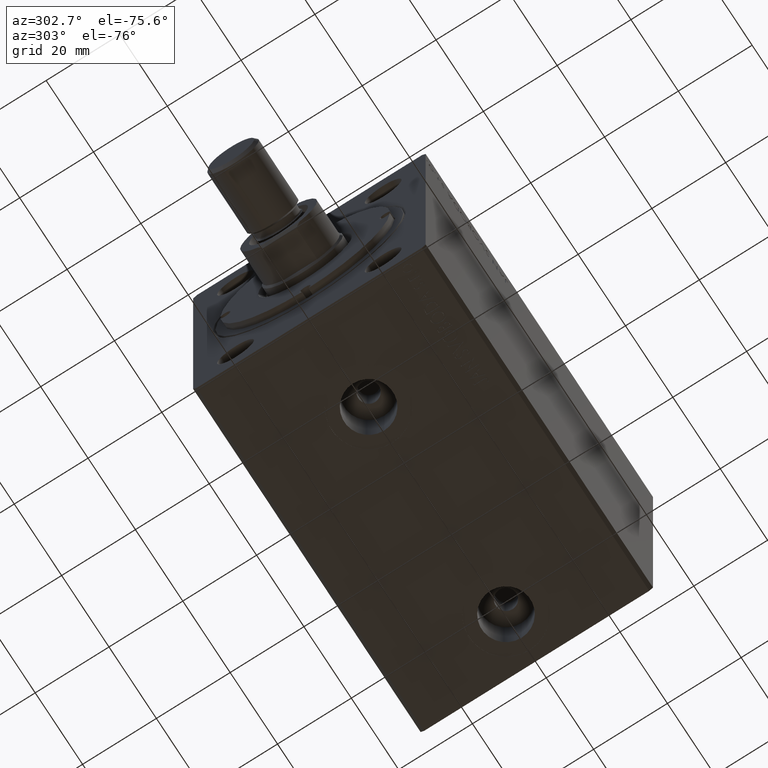
[diagram: clean part render]
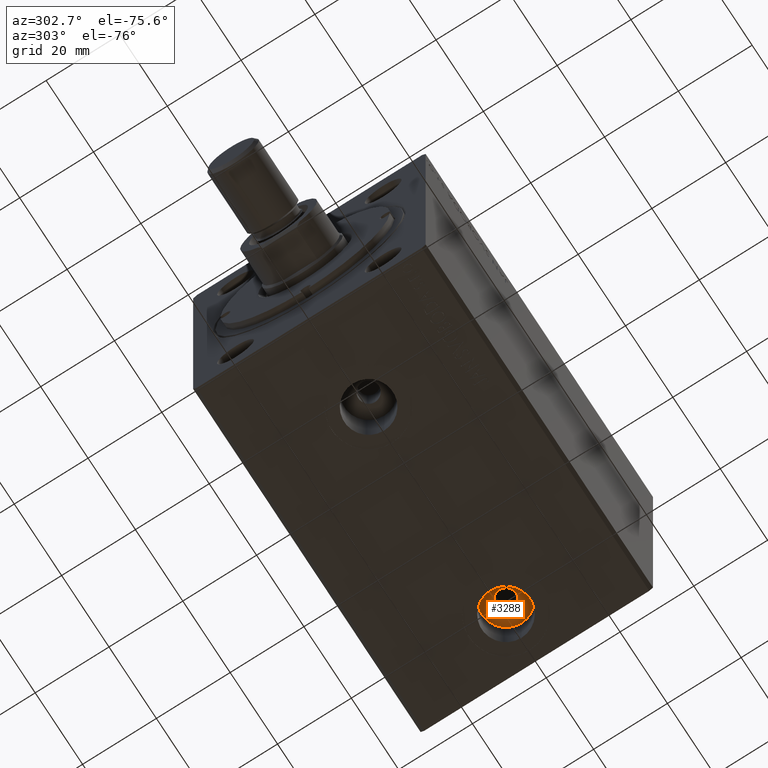
[diagram: same view with one face highlighted and labeled with its STEP entity id]
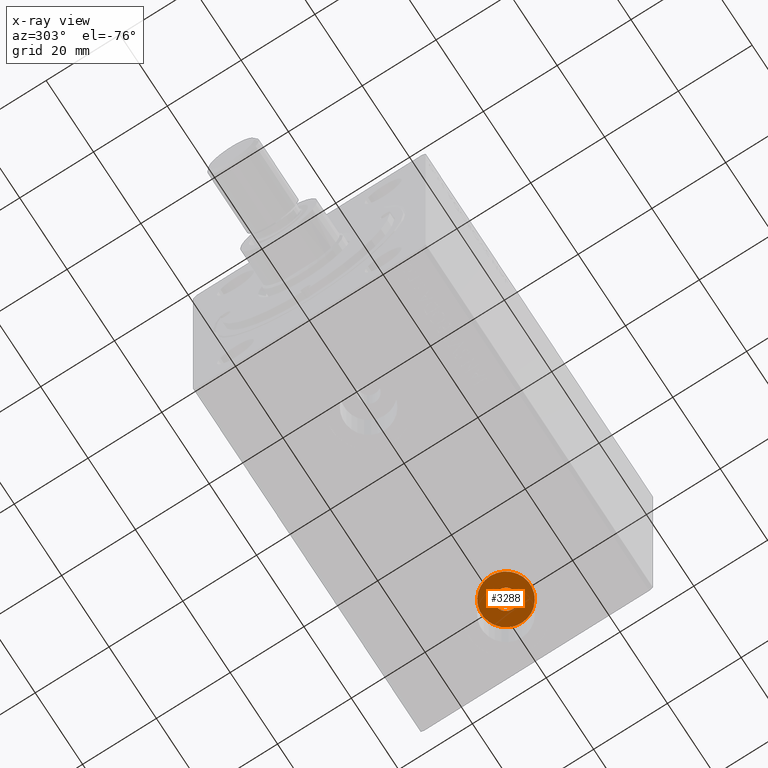
[diagram: x-ray of the same camera — body ghosted, the highlighted face saturated]
A machine part, auxiliary view. The second image highlights one B-rep face of the part: STEP entity #3288.
The next image is the same camera in x-ray: the body ghosted, the highlighted face saturated — about 0% of this face is hidden behind the body in this view.
In plain terms, the highlighted planar face has unit normal (0, 0, -1).
Its self-contained STEP definition (entity closure, byte-faithful):
#1783 = EDGE_CURVE ( 'NONE', #30736, #21651, #19500, .T. ) ;
#1960 = VERTEX_POINT ( 'NONE', #20041 ) ;
#2593 = CARTESIAN_POINT ( 'NONE',  ( 0.000000000000000000, 0.000000000000000000, -28.80000000000000782 ) ) ;
#2714 = EDGE_CURVE ( 'NONE', #21651, #30736, #18086, .T. ) ;
#3288 = ADVANCED_FACE ( 'NONE', ( #23110, #30301 ), #20602, .T. ) ;
#3672 = AXIS2_PLACEMENT_3D ( 'NONE', #11117, #28472, #38154 ) ;
#4219 = VERTEX_POINT ( 'NONE', #40259 ) ;
#4300 = CARTESIAN_POINT ( 'NONE',  ( 83.00000000000000000, -9.911387943591445357E-15, -28.80000000000000782 ) ) ;
#9839 = AXIS2_PLACEMENT_3D ( 'NONE', #28134, #41848, #38920 ) ;
#11117 = CARTESIAN_POINT ( 'NONE',  ( 83.00000000000000000, -9.911387943591445357E-15, -28.80000000000000782 ) ) ;
#13313 = AXIS2_PLACEMENT_3D ( 'NONE', #36410, #40218, #43825 ) ;
#16045 = EDGE_LOOP ( 'NONE', ( #23746, #34809 ) ) ;
#16326 = DIRECTION ( 'NONE',  ( -1.000000000000000000, 0.000000000000000000, -0.000000000000000000 ) ) ;
#17744 = CIRCLE ( 'NONE', #9839, 6.580000000000002736 ) ;
#18086 = CIRCLE ( 'NONE', #3672, 2.750000000000002665 ) ;
#19500 = CIRCLE ( 'NONE', #39638, 2.750000000000002665 ) ;
#20041 = CARTESIAN_POINT ( 'NONE',  ( 89.58000000000001251, -9.105570349752486315E-15, -28.80000000000000782 ) ) ;
#20602 = PLANE ( 'NONE',  #40809 ) ;
#20696 = EDGE_LOOP ( 'NONE', ( #42627, #38811 ) ) ;
#21651 = VERTEX_POINT ( 'NONE', #29336 ) ;
#23110 = FACE_BOUND ( 'NONE', #16045, .T. ) ;
#23746 = ORIENTED_EDGE ( 'NONE', *, *, #2714, .F. ) ;
#24364 = DIRECTION ( 'NONE',  ( -1.000000000000000000, 0.000000000000000000, 0.000000000000000000 ) ) ;
#24808 = DIRECTION ( 'NONE',  ( 0.000000000000000000, 0.000000000000000000, -1.000000000000000000 ) ) ;
#27363 = DIRECTION ( 'NONE',  ( 0.000000000000000000, 0.000000000000000000, -1.000000000000000000 ) ) ;
#28134 = CARTESIAN_POINT ( 'NONE',  ( 83.00000000000000000, -9.911387943591445357E-15, -28.80000000000000782 ) ) ;
#28472 = DIRECTION ( 'NONE',  ( 0.000000000000000000, 0.000000000000000000, -1.000000000000000000 ) ) ;
#29336 = CARTESIAN_POINT ( 'NONE',  ( 80.25000000000000000, -9.911387943591445357E-15, -28.80000000000000782 ) ) ;
#30301 = FACE_OUTER_BOUND ( 'NONE', #20696, .T. ) ;
#30736 = VERTEX_POINT ( 'NONE', #40053 ) ;
#33947 = EDGE_CURVE ( 'NONE', #4219, #1960, #42779, .T. ) ;
#34809 = ORIENTED_EDGE ( 'NONE', *, *, #1783, .F. ) ;
#36410 = CARTESIAN_POINT ( 'NONE',  ( 83.00000000000000000, -9.911387943591445357E-15, -28.80000000000000782 ) ) ;
#38154 = DIRECTION ( 'NONE',  ( -1.000000000000000000, 0.000000000000000000, 0.000000000000000000 ) ) ;
#38811 = ORIENTED_EDGE ( 'NONE', *, *, #39952, .T. ) ;
#38920 = DIRECTION ( 'NONE',  ( -1.000000000000000000, 0.000000000000000000, 0.000000000000000000 ) ) ;
#39638 = AXIS2_PLACEMENT_3D ( 'NONE', #4300, #24808, #24364 ) ;
#39952 = EDGE_CURVE ( 'NONE', #1960, #4219, #17744, .T. ) ;
#40053 = CARTESIAN_POINT ( 'NONE',  ( 85.75000000000000000, -9.574610073825920544E-15, -28.80000000000000782 ) ) ;
#40218 = DIRECTION ( 'NONE',  ( 0.000000000000000000, 0.000000000000000000, -1.000000000000000000 ) ) ;
#40259 = CARTESIAN_POINT ( 'NONE',  ( 76.42000000000000171, -9.911387943591445357E-15, -28.80000000000000782 ) ) ;
#40809 = AXIS2_PLACEMENT_3D ( 'NONE', #2593, #27363, #16326 ) ;
#41848 = DIRECTION ( 'NONE',  ( 0.000000000000000000, 0.000000000000000000, -1.000000000000000000 ) ) ;
#42627 = ORIENTED_EDGE ( 'NONE', *, *, #33947, .T. ) ;
#42779 = CIRCLE ( 'NONE', #13313, 6.580000000000002736 ) ;
#43825 = DIRECTION ( 'NONE',  ( -1.000000000000000000, 0.000000000000000000, 0.000000000000000000 ) ) ;